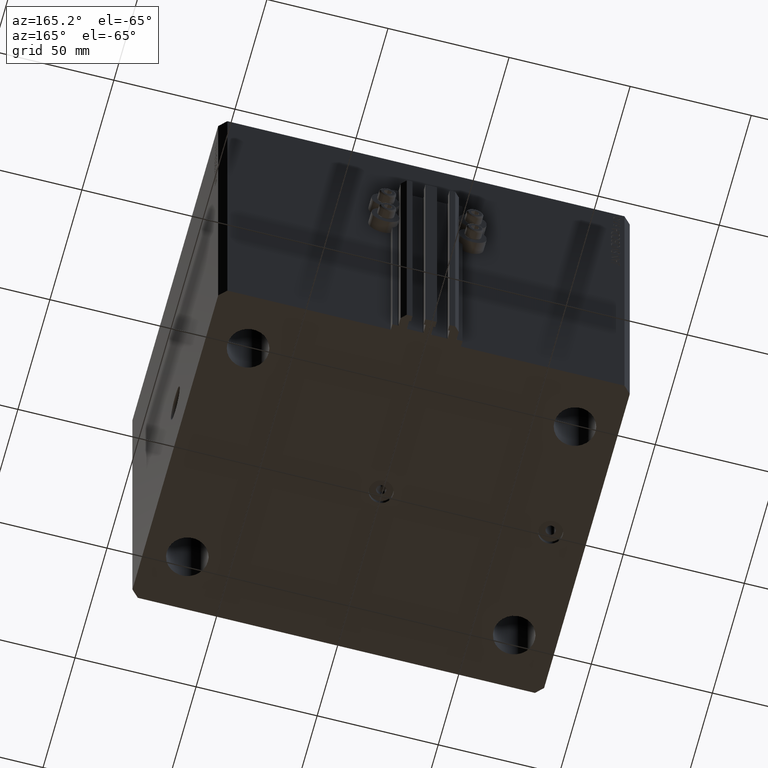
[diagram: clean part render]
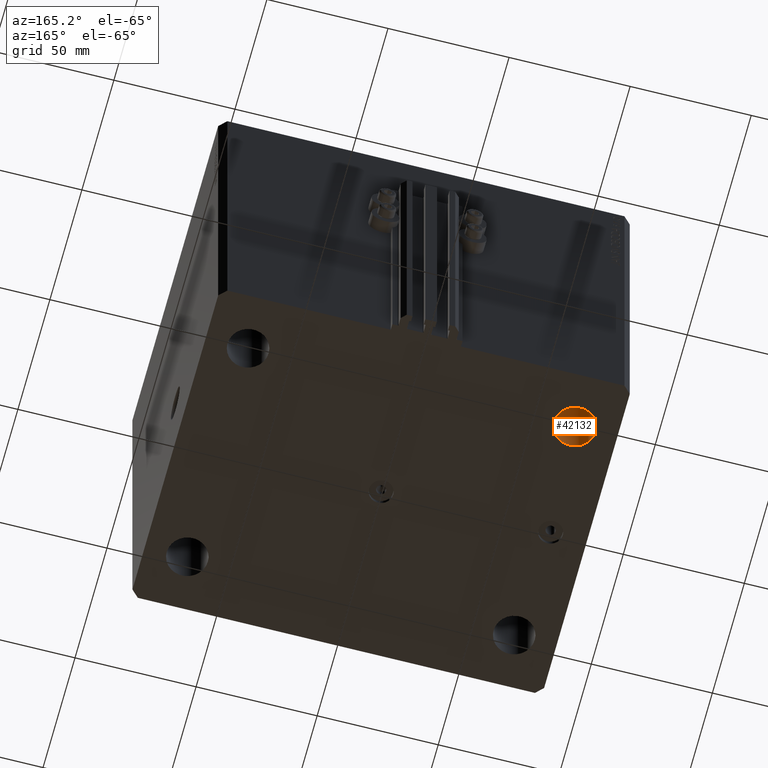
[diagram: same view with one face highlighted and labeled with its STEP entity id]
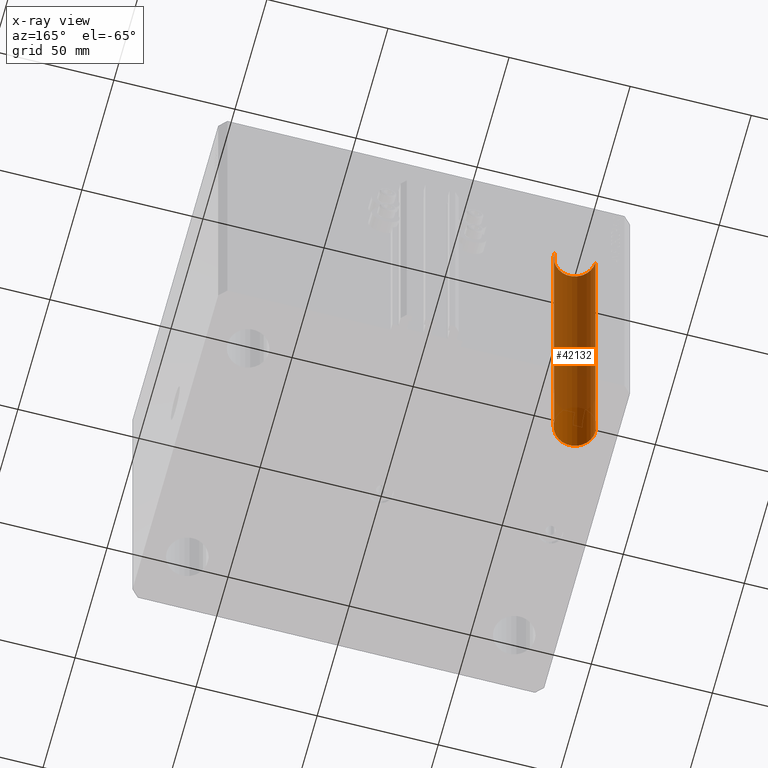
[diagram: x-ray of the same camera — body ghosted, the highlighted face saturated]
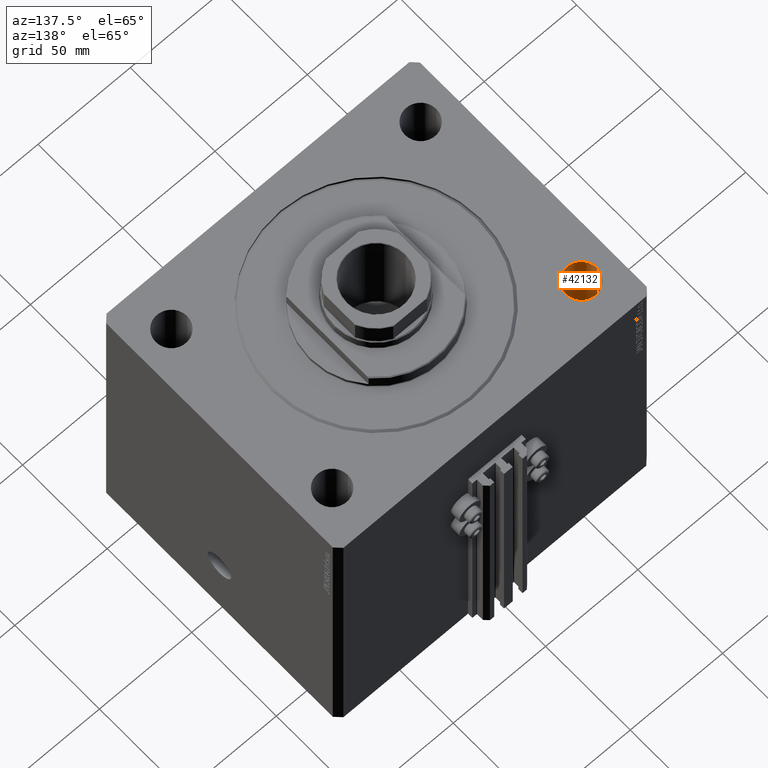
[diagram: same view with one face highlighted and labeled with its STEP entity id]
A machine part, auxiliary view. The second image highlights one B-rep face of the part: STEP entity #42132.
The next image is the same camera in x-ray: the body ghosted, the highlighted face saturated — about 79% of this face is hidden behind the body in this view.
A second angle (auxiliary view) of the same face is appended — the face is thin or edge-on in the first view.
In plain terms, the highlighted cylindrical surface (edge-blend (fillet) strip) has radius 8.5 mm, axis along (0, 0, 1).
Its self-contained STEP definition (entity closure, byte-faithful):
#515 = EDGE_CURVE ( 'NONE', #16210, #12621, #8473, .T. ) ;
#1222 = CIRCLE ( 'NONE', #35673, 8.499999999999992895 ) ;
#1510 = VERTEX_POINT ( 'NONE', #40999 ) ;
#3734 = VECTOR ( 'NONE', #23298, 1000.000000000000000 ) ;
#3766 = EDGE_CURVE ( 'NONE', #16210, #1510, #23015, .T. ) ;
#4971 = ORIENTED_EDGE ( 'NONE', *, *, #3766, .T. ) ;
#5512 = EDGE_LOOP ( 'NONE', ( #4971, #6394, #17328, #46571 ) ) ;
#5774 = VECTOR ( 'NONE', #11717, 1000.000000000000000 ) ;
#6394 = ORIENTED_EDGE ( 'NONE', *, *, #25608, .T. ) ;
#7620 = AXIS2_PLACEMENT_3D ( 'NONE', #23210, #32893, #22101 ) ;
#8091 = CARTESIAN_POINT ( 'NONE',  ( -59.00000000000001421, 47.50000000000000000, -160.0000000000000000 ) ) ;
#8473 = LINE ( 'NONE', #38169, #3734 ) ;
#10236 = DIRECTION ( 'NONE',  ( 1.000000000000000000, 0.000000000000000000, 0.000000000000000000 ) ) ;
#11717 = DIRECTION ( 'NONE',  ( -0.000000000000000000, -0.000000000000000000, 1.000000000000000000 ) ) ;
#12621 = VERTEX_POINT ( 'NONE', #34317 ) ;
#14291 = DIRECTION ( 'NONE',  ( -0.000000000000000000, -0.000000000000000000, -1.000000000000000000 ) ) ;
#15702 = DIRECTION ( 'NONE',  ( 1.000000000000000000, 0.000000000000000000, 0.000000000000000000 ) ) ;
#16210 = VERTEX_POINT ( 'NONE', #8091 ) ;
#17328 = ORIENTED_EDGE ( 'NONE', *, *, #28987, .T. ) ;
#18278 = FACE_OUTER_BOUND ( 'NONE', #5512, .T. ) ;
#22101 = DIRECTION ( 'NONE',  ( 1.000000000000000000, 0.000000000000000000, 0.000000000000000000 ) ) ;
#22724 = CARTESIAN_POINT ( 'NONE',  ( -76.00000000000000000, 47.50000000000000000, -184.0416305603426395 ) ) ;
#23015 = CIRCLE ( 'NONE', #32239, 8.499999999999992895 ) ;
#23210 = CARTESIAN_POINT ( 'NONE',  ( -67.50000000000000000, 47.50000000000000000, -184.0416305603426395 ) ) ;
#23298 = DIRECTION ( 'NONE',  ( -0.000000000000000000, -0.000000000000000000, 1.000000000000000000 ) ) ;
#25608 = EDGE_CURVE ( 'NONE', #1510, #46804, #33280, .T. ) ;
#28810 = CARTESIAN_POINT ( 'NONE',  ( -76.00000000000000000, 47.50000000000000000, 0.000000000000000000 ) ) ;
#28987 = EDGE_CURVE ( 'NONE', #46804, #12621, #1222, .T. ) ;
#31262 = CARTESIAN_POINT ( 'NONE',  ( -67.50000000000000000, 47.50000000000000000, 0.000000000000000000 ) ) ;
#32239 = AXIS2_PLACEMENT_3D ( 'NONE', #47099, #14291, #10236 ) ;
#32893 = DIRECTION ( 'NONE',  ( -0.000000000000000000, -0.000000000000000000, 1.000000000000000000 ) ) ;
#33280 = LINE ( 'NONE', #22724, #5774 ) ;
#34317 = CARTESIAN_POINT ( 'NONE',  ( -59.00000000000001421, 47.50000000000000000, 0.000000000000000000 ) ) ;
#35673 = AXIS2_PLACEMENT_3D ( 'NONE', #31262, #45159, #15702 ) ;
#38169 = CARTESIAN_POINT ( 'NONE',  ( -59.00000000000001421, 47.50000000000000000, -184.0416305603426395 ) ) ;
#40545 = CYLINDRICAL_SURFACE ( 'NONE', #7620, 8.499999999999992895 ) ;
#40999 = CARTESIAN_POINT ( 'NONE',  ( -76.00000000000000000, 47.50000000000000000, -160.0000000000000000 ) ) ;
#42132 = ADVANCED_FACE ( 'NONE', ( #18278 ), #40545, .F. ) ;
#45159 = DIRECTION ( 'NONE',  ( 0.000000000000000000, 0.000000000000000000, 1.000000000000000000 ) ) ;
#46571 = ORIENTED_EDGE ( 'NONE', *, *, #515, .F. ) ;
#46804 = VERTEX_POINT ( 'NONE', #28810 ) ;
#47099 = CARTESIAN_POINT ( 'NONE',  ( -67.50000000000000000, 47.50000000000000000, -160.0000000000000000 ) ) ;